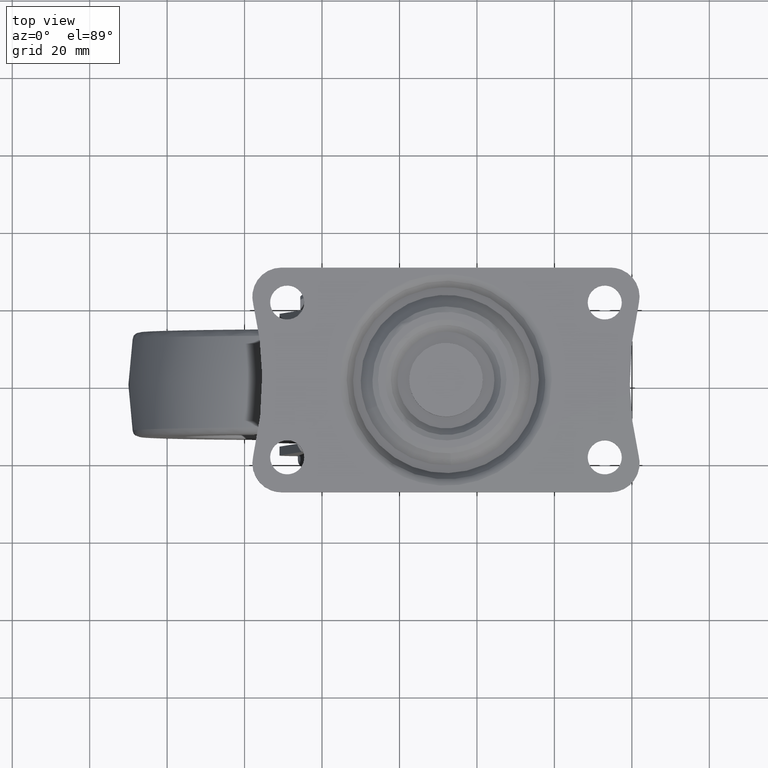
[diagram: clean part render]
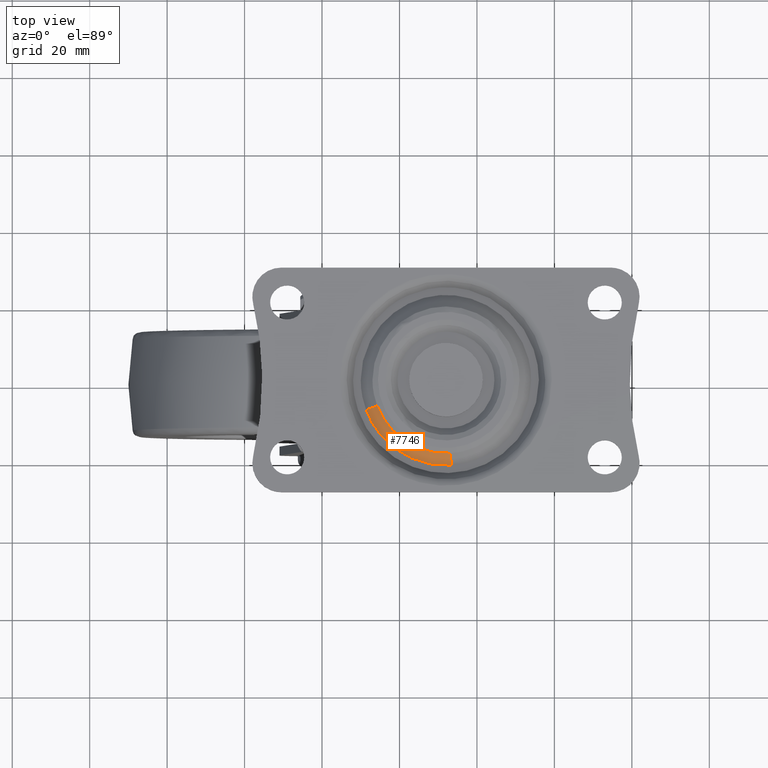
[diagram: same view with one face highlighted and labeled with its STEP entity id]
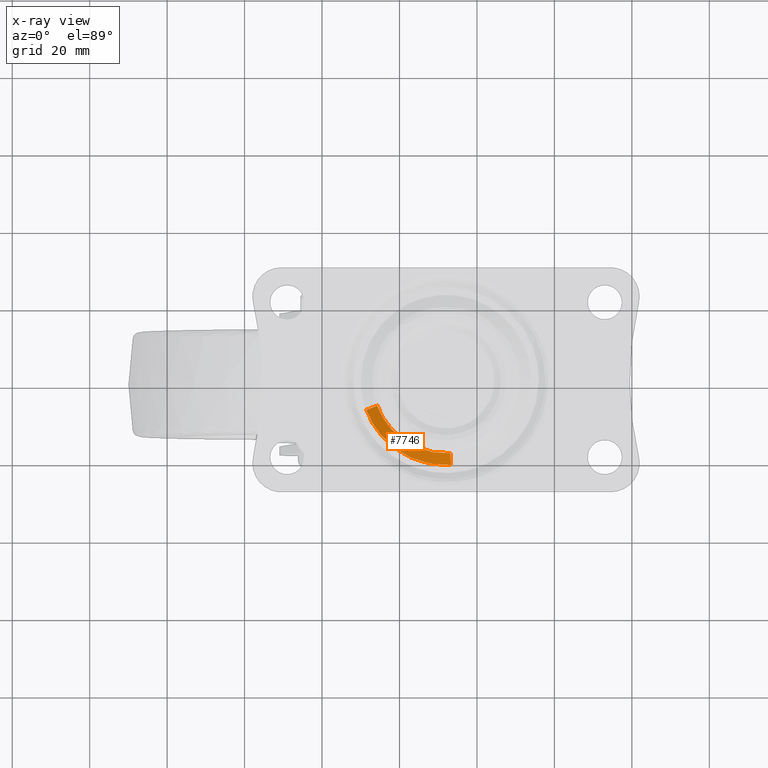
[diagram: x-ray of the same camera — body ghosted, the highlighted face saturated]
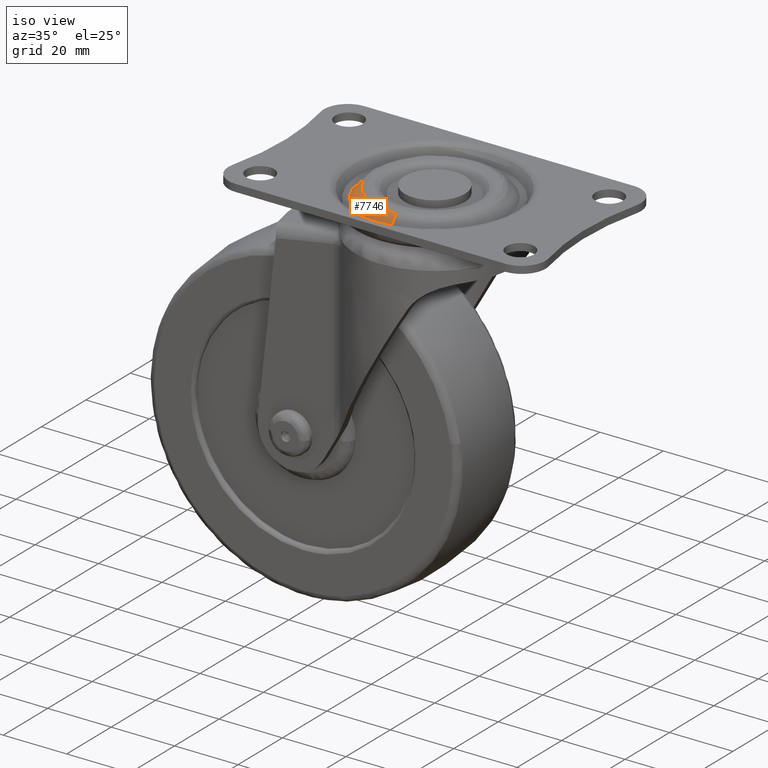
[diagram: same view with one face highlighted and labeled with its STEP entity id]
A machine part, top view. The second image highlights one B-rep face of the part: STEP entity #7746.
The next image is the same camera in x-ray: the body ghosted, the highlighted face saturated — about 0% of this face is hidden behind the body in this view.
A second angle (iso view) of the same face is appended — the face is thin or edge-on in the first view.
In plain terms, the highlighted face is a freeform B-spline surface patch.
Its self-contained STEP definition (entity closure, byte-faithful):
#7557=CARTESIAN_POINT('',(14.234252847415821,-6.672861053799663,71.414213562350270));
#7558=VERTEX_POINT('',#7557);
#7621=CARTESIAN_POINT('',(33.158554031813097,-18.942190979083801,71.414213562354348));
#7622=VERTEX_POINT('',#7621);
#7636=CARTESIAN_POINT('',(33.343067870041722,-21.958965565300559,68.391801568508868));
#7637=VERTEX_POINT('',#7636);
#7638=CARTESIAN_POINT('',(33.158554031813097,-18.942190979083801,71.414213562354348));
#7639=CARTESIAN_POINT('',(33.343067870041722,-21.958965565300559,68.391801568508868));
#7640=QUASI_UNIFORM_CURVE('',1,(#7638,#7639),.UNSPECIFIED.,.F.,.U.);
#7641=EDGE_CURVE('',#7622,#7637,#7640,.T.);
#7675=CARTESIAN_POINT('',(11.404841266957700,-7.735595436777201,68.391801568529246));
#7676=VERTEX_POINT('',#7675);
#7690=CARTESIAN_POINT('',(14.234252847415821,-6.672861053799663,71.414213562350270));
#7691=CARTESIAN_POINT('',(11.404841266957700,-7.735595436777201,68.391801568529246));
#7692=QUASI_UNIFORM_CURVE('',1,(#7690,#7691),.UNSPECIFIED.,.F.,.U.);
#7693=EDGE_CURVE('',#7558,#7676,#7692,.T.);
#7698=CARTESIAN_POINT('',(33.153941185600978,-18.866771612495040,71.489773864145874));
#7699=CARTESIAN_POINT('',(19.215243426345555,-19.719298888936784,71.489773864145874));
#7700=CARTESIAN_POINT('',(14.304988138668213,-6.646292693314226,71.489773864145874));
#7701=CARTESIAN_POINT('',(33.347796036871003,-22.036270414100720,68.314352261155065));
#7702=CARTESIAN_POINT('',(17.067484844682237,-23.032016903480237,68.314352261155065));
#7703=CARTESIAN_POINT('',(11.332337595119675,-7.762828005197095,68.314352261155079));
#7711=(BOUNDED_SURFACE()B_SPLINE_SURFACE(2,1,((#7698,#7701),(#7699,#7702),(#7700,#7703)),.UNSPECIFIED.,.F.,.F.,.U.)B_SPLINE_SURFACE_WITH_KNOTS((3,3),(2,2),(0.0,29.063829967385718),(0.0,4.490724297202122),.UNSPECIFIED.)GEOMETRIC_REPRESENTATION_ITEM()RATIONAL_B_SPLINE_SURFACE(((1.0,1.0),(0.765685424949238,0.765685424949238),(0.906274169979695,0.906274169979695)))REPRESENTATION_ITEM('')SURFACE());
#7712=CARTESIAN_POINT('',(33.158554031813097,-18.942190979083797,71.414213562354348));
#7713=CARTESIAN_POINT('',(32.579817754472046,-18.977588006172098,71.414213562372993));
#7714=CARTESIAN_POINT('',(32.0,-18.977588006172098,71.414213562372993));
#7715=CARTESIAN_POINT('',(18.855940444143371,-18.977588006172102,71.414213562373021));
#7716=CARTESIAN_POINT('',(14.234252847415826,-6.672861053799663,71.414213562350270));
#7724=(BOUNDED_CURVE()B_SPLINE_CURVE(2,(#7712,#7713,#7714,#7715,#7716),.UNSPECIFIED.,.F.,.U.)B_SPLINE_CURVE_WITH_KNOTS((3,2,3),(0.239332962239401,0.250000000000000,0.440284170894933),.UNSPECIFIED.)CURVE()GEOMETRIC_REPRESENTATION_ITEM()RATIONAL_B_SPLINE_CURVE((0.976072041667699,0.987502787900374,1.0,0.777068226789336,0.893499554630899))REPRESENTATION_ITEM(''));
#7725=EDGE_CURVE('',#7622,#7558,#7724,.T.);
#7726=ORIENTED_EDGE('',*,*,#7725,.T.);
#7727=ORIENTED_EDGE('',*,*,#7693,.T.);
#7728=CARTESIAN_POINT('',(33.343067870041722,-21.958965565300559,68.391801568508868));
#7729=CARTESIAN_POINT('',(32.672160792842377,-22.0,68.391801568545105));
#7730=CARTESIAN_POINT('',(32.0,-22.0,68.391801568545105));
#7731=CARTESIAN_POINT('',(16.762588894970985,-22.000000000000007,68.391801568545105));
#7732=CARTESIAN_POINT('',(11.404841266957700,-7.735595436777201,68.391801568529246));
#7740=(BOUNDED_CURVE()B_SPLINE_CURVE(2,(#7728,#7729,#7730,#7731,#7732),.UNSPECIFIED.,.F.,.U.)B_SPLINE_CURVE_WITH_KNOTS((3,2,3),(0.739332962237684,0.750000000000000,0.940284170896501),.UNSPECIFIED.)CURVE()GEOMETRIC_REPRESENTATION_ITEM()RATIONAL_B_SPLINE_CURVE((0.976072041664019,0.987502787898362,1.0,0.777068226787499,0.893499554632818))REPRESENTATION_ITEM(''));
#7741=EDGE_CURVE('',#7637,#7676,#7740,.T.);
#7742=ORIENTED_EDGE('',*,*,#7741,.F.);
#7743=ORIENTED_EDGE('',*,*,#7641,.F.);
#7744=EDGE_LOOP('',(#7726,#7727,#7742,#7743));
#7745=FACE_OUTER_BOUND('',#7744,.T.);
#7746=ADVANCED_FACE('',(#7745),#7711,.T.);